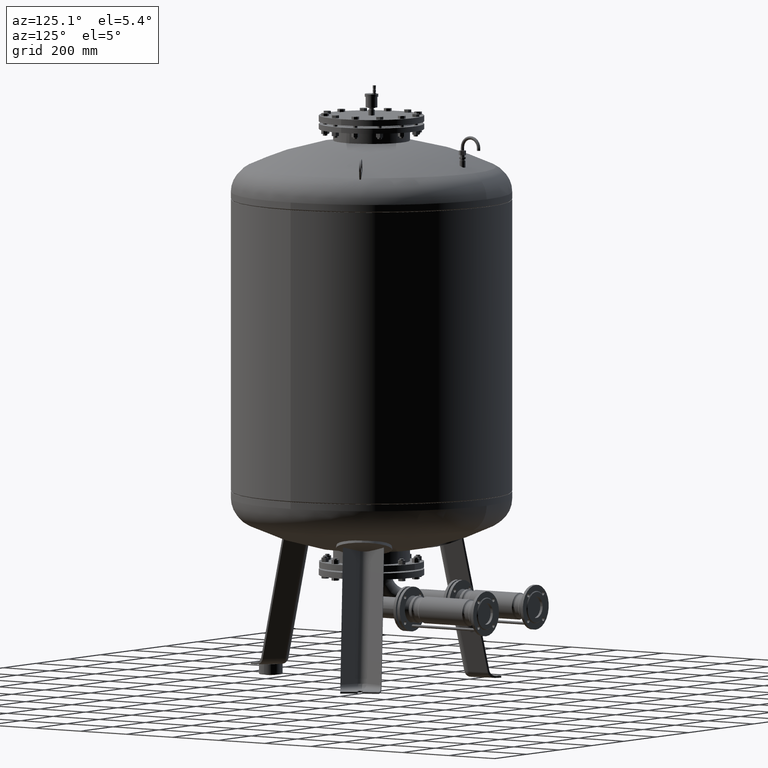
[diagram: clean part render]
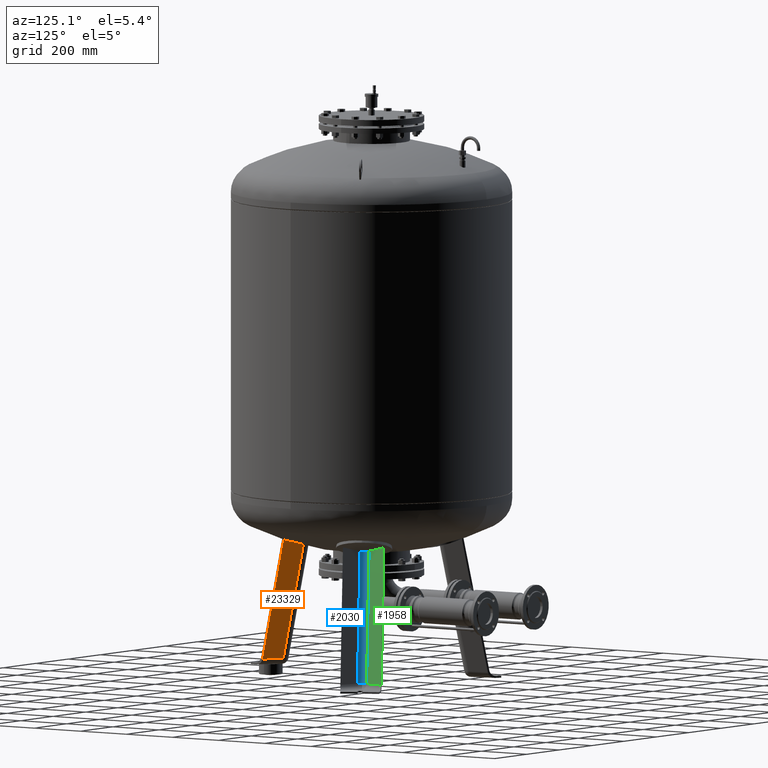
[diagram: same view with three faces highlighted in distinct colors, each labeled with its STEP entity id]
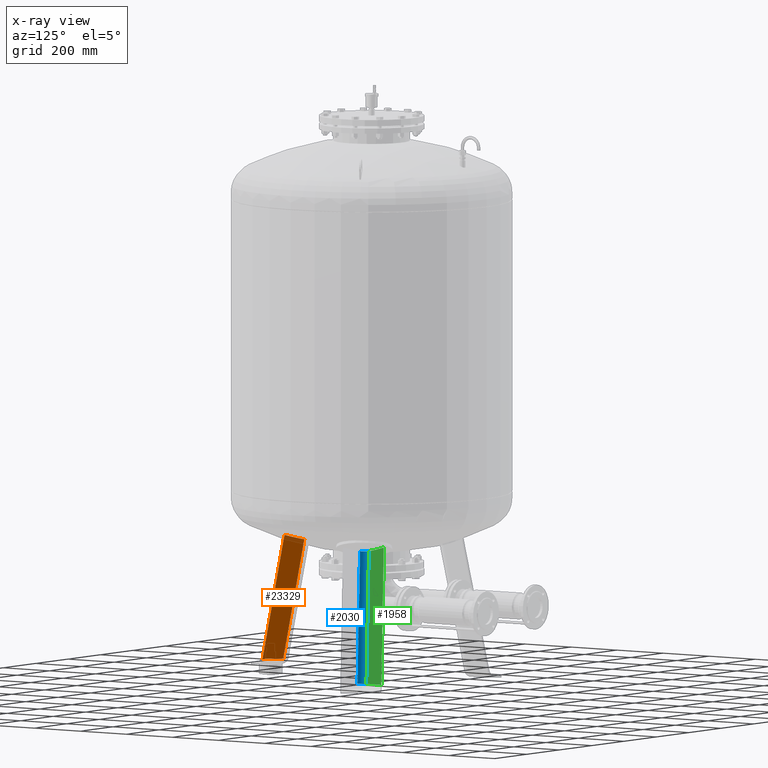
[diagram: x-ray of the same camera — body ghosted, the three highlighted faces saturated]
A machine part, auxiliary view with three faces highlighted in distinct colors.
The next image is the same camera in x-ray (body ghosted, the three faces saturated) — at least one of them is partly hidden behind the body in this view.
Their STEP definitions:

[orange] entity #23329 — the highlighted planar face has unit normal (0.6455, 0.7471, -0.1588).
#22555=CARTESIAN_POINT('',(16.136450826554551,-371.970961811045530,62.029948423057299));
#22556=VERTEX_POINT('',#22555);
#22700=CARTESIAN_POINT('',(73.500000000000128,-326.370910215901920,509.718015578199130));
#22701=VERTEX_POINT('',#22700);
#22709=CARTESIAN_POINT('',(16.136450826554636,-280.548169175437410,492.140371349142700));
#22710=VERTEX_POINT('',#22709);
#22711=CARTESIAN_POINT('',(-33.055219954219147,-31.428011616323261,1464.216836450315200));
#22712=DIRECTION('',(-0.645458033062182,-0.747104967402682,0.158802063077709));
#22713=DIRECTION('',(-5.092368E-017,-0.207911690817760,-0.978147600733805));
#22714=AXIS2_PLACEMENT_3D('',#22711,#22712,#22713);
#22715=CIRCLE('',#22714,1004.695639176399000);
#22716=EDGE_CURVE('',#22710,#22701,#22715,.T.);
#23044=CARTESIAN_POINT('',(73.500000000000014,-421.529946471096990,62.029948423057306));
#23045=VERTEX_POINT('',#23044);
#23046=CARTESIAN_POINT('',(16.136450826554551,-371.970961811045530,62.029948423057299));
#23047=DIRECTION('',(0.756707249513243,-0.653753882232529,9.373075E-017));
#23048=VECTOR('',#23047,75.806792138366546);
#23049=LINE('',#23046,#23048);
#23050=EDGE_CURVE('',#22556,#23045,#23049,.T.);
#23308=CARTESIAN_POINT('',(1.892930E-014,-381.573825514333010,-48.735293817669323));
#23309=DIRECTION('',(0.645458033062182,0.747104967402682,-0.158802063077709));
#23310=DIRECTION('',(-1.655020E-016,-0.207911690817760,-0.978147600733806));
#23311=AXIS2_PLACEMENT_3D('',#23308,#23309,#23310);
#23312=PLANE('',#23311);
#23313=CARTESIAN_POINT('',(73.500000000000014,-421.529946471096990,62.029948423057306));
#23314=DIRECTION('',(2.483928E-016,0.207911690817760,0.978147600733805));
#23315=VECTOR('',#23314,457.689684889362920);
#23316=LINE('',#23313,#23315);
#23317=EDGE_CURVE('',#23045,#22701,#23316,.T.);
#23318=ORIENTED_EDGE('',*,*,#23317,.F.);
#23319=ORIENTED_EDGE('',*,*,#23050,.F.);
#23320=CARTESIAN_POINT('',(16.136450826554636,-280.548169175437410,492.140371349142700));
#23321=DIRECTION('',(-1.939081E-016,-0.207911690817760,-0.978147600733805));
#23322=VECTOR('',#23321,439.719345631903540);
#23323=LINE('',#23320,#23322);
#23324=EDGE_CURVE('',#22710,#22556,#23323,.T.);
#23325=ORIENTED_EDGE('',*,*,#23324,.F.);
#23326=ORIENTED_EDGE('',*,*,#22716,.T.);
#23327=EDGE_LOOP('',(#23318,#23319,#23325,#23326));
#23328=FACE_OUTER_BOUND('',#23327,.T.);
#23329=ADVANCED_FACE('',(#23328),#23312,.T.);

[blue] entity #2030 — the highlighted cylindrical surface (edge-blend (fillet) strip) has radius 25 mm, axis along (-0.1801, -0.104, 0.9781).
#1180=CARTESIAN_POINT('',(322.896399860520150,186.424323379832430,25.802207729556006));
#1181=VERTEX_POINT('',#1180);
#1191=CARTESIAN_POINT('',(335.966845019347600,175.337779953756810,27.029948423057292));
#1192=VERTEX_POINT('',#1191);
#1193=CARTESIAN_POINT('',(344.073916632677030,198.651168389004970,30.999999999999996));
#1194=DIRECTION('',(-0.180056805991956,-0.103955845408880,0.978147600733805));
#1195=DIRECTION('',(-0.847100670886274,-0.489073800366903,-0.207911690817760));
#1196=AXIS2_PLACEMENT_3D('',#1193,#1194,#1195);
#1197=CIRCLE('',#1196,24.999999999999996);
#1198=EDGE_CURVE('',#1181,#1192,#1197,.T.);
#1490=CARTESIAN_POINT('',(319.830394192793110,203.286932639186090,27.029948423057284));
#1491=VERTEX_POINT('',#1490);
#1580=CARTESIAN_POINT('',(344.073916632677030,198.651168389004970,30.999999999999996));
#1581=DIRECTION('',(-0.180056805991956,-0.103955845408880,0.978147600733805));
#1582=DIRECTION('',(-0.847100670886274,-0.489073800366903,-0.207911690817760));
#1583=AXIS2_PLACEMENT_3D('',#1580,#1581,#1582);
#1584=CIRCLE('',#1583,24.999999999999996);
#1585=EDGE_CURVE('',#1491,#1181,#1584,.T.);
#1771=CARTESIAN_POINT('',(250.671269583507810,126.092356515190770,490.392952149244080));
#1772=VERTEX_POINT('',#1771);
#1780=CARTESIAN_POINT('',(234.534818756953290,154.041509200620030,490.392952149244080));
#1781=VERTEX_POINT('',#1780);
#1782=CARTESIAN_POINT('',(234.534818756953290,154.041509200620030,490.392952149244080));
#1783=CARTESIAN_POINT('',(234.518724514218580,153.939076163065860,490.371623892671440));
#1784=CARTESIAN_POINT('',(234.503242821862440,153.836344485026530,490.350420493468330));
#1785=CARTESIAN_POINT('',(234.375415184551540,152.950224322039870,490.169148601515130));
#1786=CARTESIAN_POINT('',(234.298485418140390,152.150731179299190,490.016489016976440));
#1787=CARTESIAN_POINT('',(234.222452813682390,150.532984898053260,489.730169035990510));
#1788=CARTESIAN_POINT('',(234.223341923047800,149.714649160971450,489.596492822823280));
#1789=CARTESIAN_POINT('',(234.305452365206550,148.073365051318800,489.351162059827520));
#1790=CARTESIAN_POINT('',(234.386671734574320,147.250416666107980,489.239506937421310));
#1791=CARTESIAN_POINT('',(234.628774753728690,145.614195972106420,489.040364541220580));
#1792=CARTESIAN_POINT('',(234.789767907944310,144.800184674411700,488.952787360993230));
#1793=CARTESIAN_POINT('',(235.188276666275930,143.194353106852870,488.802955942629920));
#1794=CARTESIAN_POINT('',(235.425794399653970,142.402533302654600,488.740702376916890));
#1795=CARTESIAN_POINT('',(235.970899955442830,140.854402461945540,488.641866930361120));
#1796=CARTESIAN_POINT('',(236.278520143095110,140.098012656324670,488.605281330539300));
#1797=CARTESIAN_POINT('',(236.954386690511970,138.632901899743100,488.557093949216380));
#1798=CARTESIAN_POINT('',(237.322637930956150,137.924183142906260,488.545493912186370));
#1799=CARTESIAN_POINT('',(237.714901647204190,137.244762456398860,488.545493912186370));
#1800=CARTESIAN_POINT('',(238.107165363452220,136.565341769891460,488.545493912186370));
#1801=CARTESIAN_POINT('',(238.536808190789400,135.892067462273250,488.557093949216380));
#1802=CARTESIAN_POINT('',(239.467698051638420,134.574194484351380,488.605281330539300));
#1803=CARTESIAN_POINT('',(239.968940744643530,133.929592684317160,488.641866930361120));
#1804=CARTESIAN_POINT('',(241.037108603185320,132.683452004905430,488.740702376916890));
#1805=CARTESIAN_POINT('',(241.604085802151620,132.081845711851600,488.802955942629920));
#1806=CARTESIAN_POINT('',(242.795522354690720,130.933811219726440,488.952787360993230));
#1807=CARTESIAN_POINT('',(243.419980240354080,130.387381409492950,489.040364541220580));
#1808=CARTESIAN_POINT('',(244.715937417980060,129.359603697571600,489.239506937421370));
#1809=CARTESIAN_POINT('',(245.388021940892120,128.877791467814350,489.351162059827520));
#1810=CARTESIAN_POINT('',(246.768360453599660,127.986039684162560,489.596492822823280));
#1811=CARTESIAN_POINT('',(247.476615436054460,127.576101824324500,489.730169035990630));
#1812=CARTESIAN_POINT('',(248.915641114720190,126.833074850678030,490.016489016976440));
#1813=CARTESIAN_POINT('',(249.646487369690790,126.499951411327060,490.169148601515020));
#1814=CARTESIAN_POINT('',(250.477803760298260,126.167593311050710,490.350420493468220));
#1815=CARTESIAN_POINT('',(250.574512849431760,126.129635010904920,490.371623892671440));
#1816=CARTESIAN_POINT('',(250.671269583507810,126.092356515190770,490.392952149244080));
#1817=B_SPLINE_CURVE_WITH_KNOTS('',3,(#1782,#1783,#1784,#1785,#1786,#1787,#1788,#1789,#1790,#1791,#1792,#1793,#1794,#1795,#1796,#1797,#1798,#1799,#1800,#1801,#1802,#1803,#1804,#1805,#1806,#1807,#1808,#1809,#1810,#1811,#1812,#1813,#1814,#1815,#1816),.UNSPECIFIED.,.F.,.U.,(4,2,2,2,2,2,2,2,3,2,2,2,2,2,2,2,4),(-16.784681571035506,-16.475076082417758,-14.121493784929527,-11.767911487441268,-9.414329189953008,-7.060746892464749,-4.707164594976490,-2.353582297488259,0.0,2.353582297488253,4.707164594976506,7.060746892464759,9.414329189953012,11.767911487441264,14.121493784929518,16.475076082417772,16.784681571035524),.UNSPECIFIED.);
#1818=EDGE_CURVE('',#1781,#1772,#1817,.T.);
#1949=CARTESIAN_POINT('',(319.830394192793110,203.286932639186090,27.029948423057284));
#1950=DIRECTION('',(-0.180056805991956,-0.103955845408880,0.978147600733805));
#1951=VECTOR('',#1950,473.714808867876630);
#1952=LINE('',#1949,#1951);
#1953=EDGE_CURVE('',#1491,#1781,#1952,.T.);
#2013=CARTESIAN_POINT('',(358.492644303445220,206.975824691094860,-47.328857379743425));
#2014=DIRECTION('',(-0.180056805991956,-0.103955845408880,0.978147600733806));
#2015=DIRECTION('',(-0.847100670886274,-0.489073800366903,-0.207911690817760));
#2016=AXIS2_PLACEMENT_3D('',#2013,#2014,#2015);
#2017=CYLINDRICAL_SURFACE('',#2016,25.0);
#2018=ORIENTED_EDGE('',*,*,#1953,.T.);
#2019=ORIENTED_EDGE('',*,*,#1818,.T.);
#2020=CARTESIAN_POINT('',(250.671269583507810,126.092356515190770,490.392952149244080));
#2021=DIRECTION('',(0.180056805991956,0.103955845408880,-0.978147600733805));
#2022=VECTOR('',#2021,473.714808867876630);
#2023=LINE('',#2020,#2022);
#2024=EDGE_CURVE('',#1772,#1192,#2023,.T.);
#2025=ORIENTED_EDGE('',*,*,#2024,.T.);
#2026=ORIENTED_EDGE('',*,*,#1198,.F.);
#2027=ORIENTED_EDGE('',*,*,#1585,.F.);
#2028=EDGE_LOOP('',(#2018,#2019,#2025,#2026,#2027));
#2029=FACE_OUTER_BOUND('',#2028,.T.);
#2030=ADVANCED_FACE('',(#2029),#2017,.F.);

[green] entity #1958 — the highlighted planar face has unit normal (0.9697, -0.1854, 0.1588).
#1490=CARTESIAN_POINT('',(319.830394192793110,203.286932639186090,27.029948423057284));
#1491=VERTEX_POINT('',#1490);
#1500=CARTESIAN_POINT('',(333.903618473282620,276.885267289667300,27.029948423057281));
#1501=VERTEX_POINT('',#1500);
#1509=CARTESIAN_POINT('',(333.903618473282620,276.885267289667300,27.029948423057281));
#1510=DIRECTION('',(-0.187813845079450,-0.982204642422582,4.741265E-017));
#1511=VECTOR('',#1510,74.931772333057637);
#1512=LINE('',#1509,#1511);
#1513=EDGE_CURVE('',#1501,#1491,#1512,.T.);
#1780=CARTESIAN_POINT('',(234.534818756953290,154.041509200620030,490.392952149244080));
#1781=VERTEX_POINT('',#1780);
#1820=CARTESIAN_POINT('',(245.347396508302920,225.757308699770080,508.106215259451630));
#1821=VERTEX_POINT('',#1820);
#1822=CARTESIAN_POINT('',(42.678741161069468,-17.943416016653515,1461.157558058853700));
#1823=DIRECTION('',(-0.969740897595359,0.185430570007245,-0.158802063077709));
#1824=DIRECTION('',(-0.180056805991956,-0.103955845408880,0.978147600733805));
#1825=AXIS2_PLACEMENT_3D('',#1822,#1823,#1824);
#1826=CIRCLE('',#1825,1004.376169121563900);
#1827=EDGE_CURVE('',#1821,#1781,#1826,.T.);
#1937=CARTESIAN_POINT('',(347.666358071049670,284.831188701224850,-47.735293817669401));
#1938=DIRECTION('',(0.969740897595359,-0.185430570007245,0.158802063077709));
#1939=DIRECTION('',(-0.180056805991956,-0.103955845408880,0.978147600733806));
#1940=AXIS2_PLACEMENT_3D('',#1937,#1938,#1939);
#1941=PLANE('',#1940);
#1942=CARTESIAN_POINT('',(333.903618473282620,276.885267289667300,27.029948423057281));
#1943=DIRECTION('',(-0.180056805991956,-0.103955845408880,0.978147600733805));
#1944=VECTOR('',#1943,491.823796812967030);
#1945=LINE('',#1942,#1944);
#1946=EDGE_CURVE('',#1501,#1821,#1945,.T.);
#1947=ORIENTED_EDGE('',*,*,#1946,.T.);
#1948=ORIENTED_EDGE('',*,*,#1827,.T.);
#1949=CARTESIAN_POINT('',(319.830394192793110,203.286932639186090,27.029948423057284));
#1950=DIRECTION('',(-0.180056805991956,-0.103955845408880,0.978147600733805));
#1951=VECTOR('',#1950,473.714808867876630);
#1952=LINE('',#1949,#1951);
#1953=EDGE_CURVE('',#1491,#1781,#1952,.T.);
#1954=ORIENTED_EDGE('',*,*,#1953,.F.);
#1955=ORIENTED_EDGE('',*,*,#1513,.F.);
#1956=EDGE_LOOP('',(#1947,#1948,#1954,#1955));
#1957=FACE_OUTER_BOUND('',#1956,.T.);
#1958=ADVANCED_FACE('',(#1957),#1941,.T.);